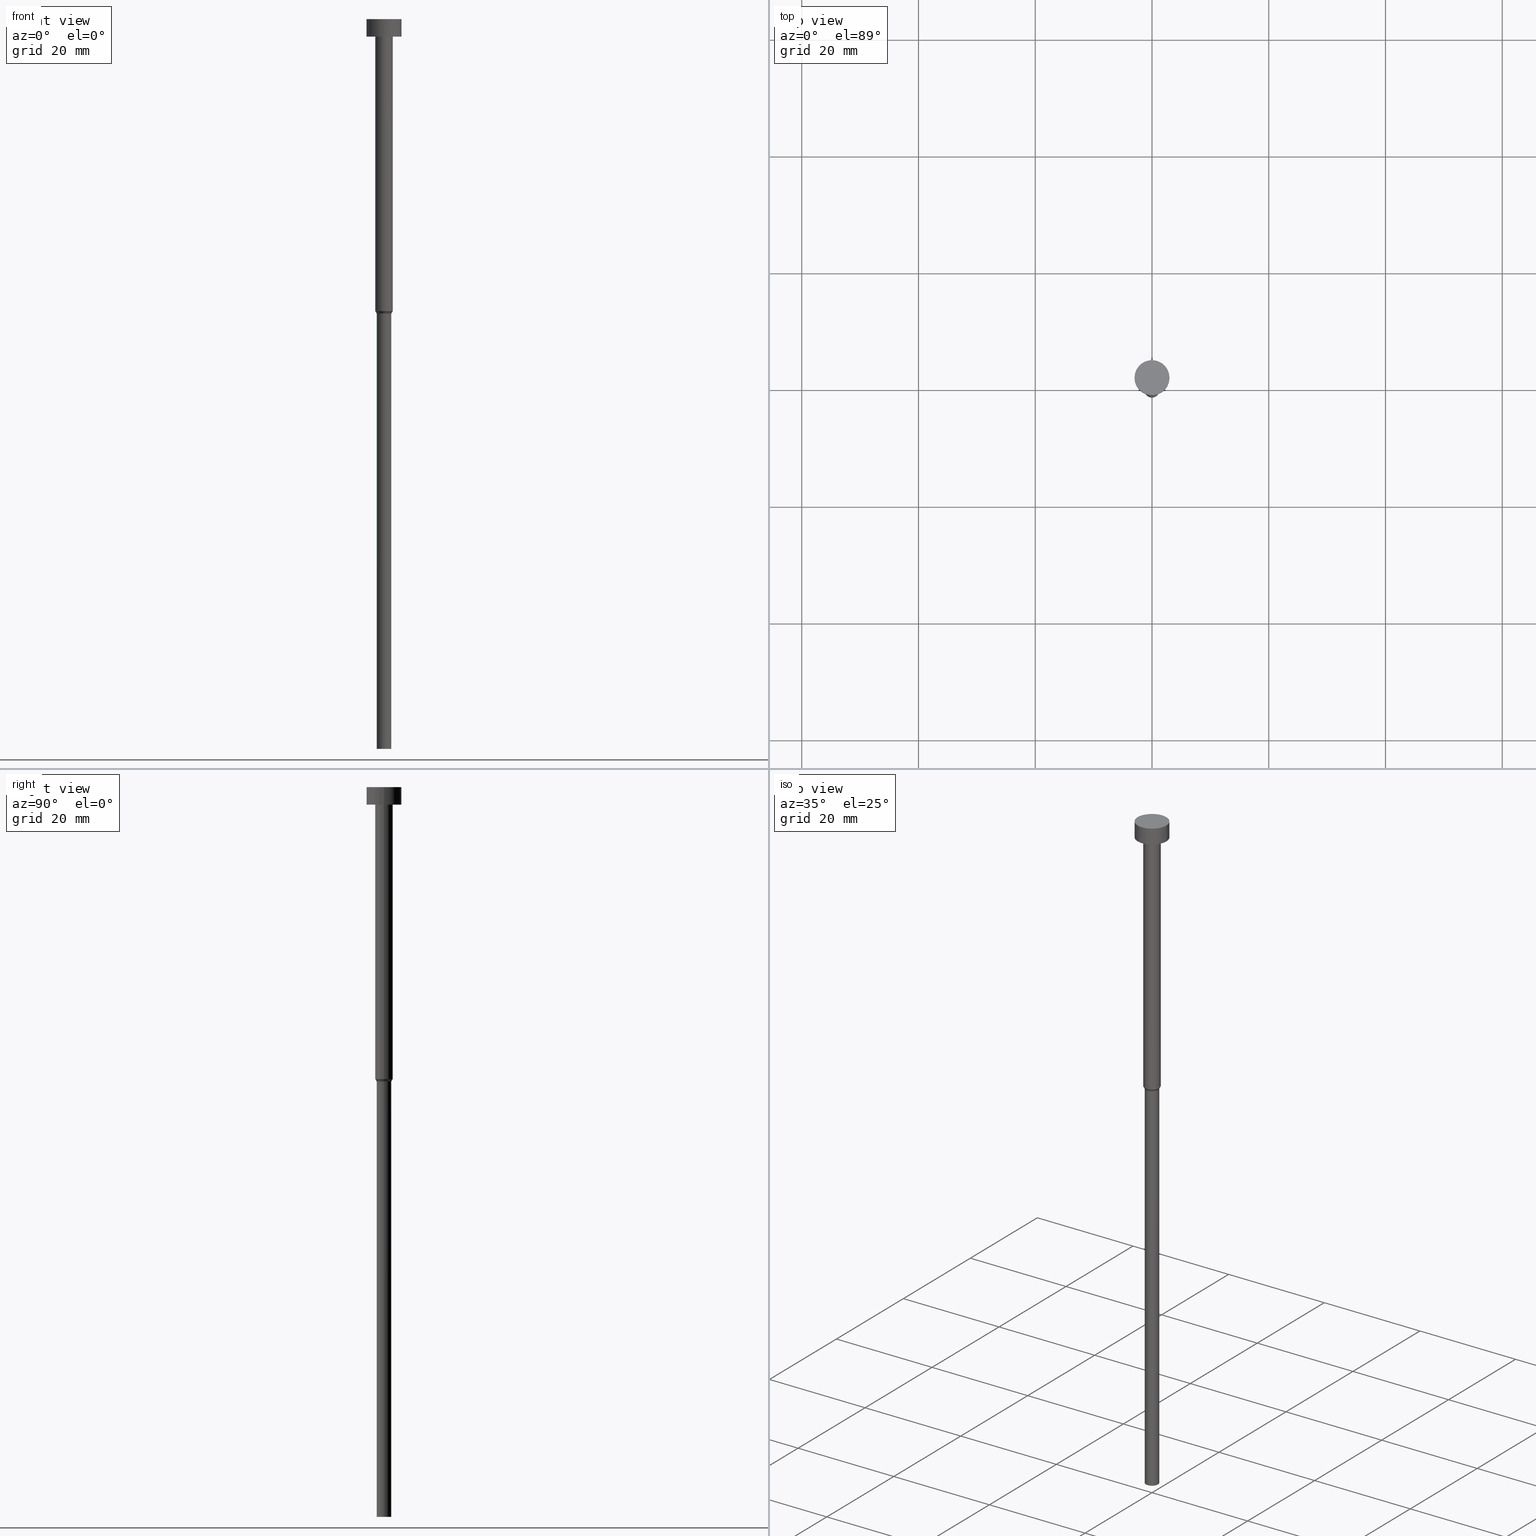
[diagram: canonical four-view strip — front | top / right | iso, engineering-drawing reading convention]
A machine part, canonical four-view strip (front | top / right | iso — engineering-drawing reading convention). The complete STEP part file that produces these views, byte-faithful:
ISO-10303-21;
HEADER;
FILE_DESCRIPTION (( 'STEP AP203' ),
    '1' );
FILE_NAME ('f55d.STEP',
    '2023-02-13T10:02:43',
    ( '' ),
    ( '' ),
    'SwSTEP 2.0',
    'SolidWorks 2019',
    '' );
FILE_SCHEMA (( 'CONFIG_CONTROL_DESIGN' ));
ENDSEC;

DATA;
#1 = AXIS2_PLACEMENT_3D ( 'NONE', #91, #47, #228 ) ;
#2 = EDGE_LOOP ( 'NONE', ( #8, #53, #223, #6 ) ) ;
#3 = ORGANIZATION ( 'NEUR�EN�', 'NEUR�EN�', '' ) ;
#4 = COORDINATED_UNIVERSAL_TIME_OFFSET ( 1, 0, .AHEAD. ) ;
#5 = EDGE_LOOP ( 'NONE', ( #222, #329, #217, #271 ) ) ;
#6 = ORIENTED_EDGE ( 'NONE', *, *, #202, .F. ) ;
#7 = ORIENTED_EDGE ( 'NONE', *, *, #51, .F. ) ;
#8 = ORIENTED_EDGE ( 'NONE', *, *, #321, .F. ) ;
#9 = VERTEX_POINT ( 'NONE', #137 ) ;
#10 = LINE ( 'NONE', #73, #133 ) ;
#11 = DIRECTION ( 'NONE',  ( -0.000000000000000000, -0.000000000000000000, 1.000000000000000000 ) ) ;
#12 = PRODUCT_RELATED_PRODUCT_CATEGORY ( 'detail', '', ( #117 ) ) ;
#13 = PRODUCT_DEFINITION_SHAPE ( 'NONE', 'NONE',  #188 ) ;
#14 = DIRECTION ( 'NONE',  ( 1.000000000000000000, 0.000000000000000000, 0.000000000000000000 ) ) ;
#15 = FACE_OUTER_BOUND ( 'NONE', #186, .T. ) ;
#16 = CIRCLE ( 'NONE', #101, 1.500000000000000000 ) ;
#17 = VECTOR ( 'NONE', #215, 1000.000000000000000 ) ;
#18 = CARTESIAN_POINT ( 'NONE',  ( 0.000000000000000000, 0.000000000000000000, -125.0000000000000000 ) ) ;
#19 = CC_DESIGN_PERSON_AND_ORGANIZATION_ASSIGNMENT ( #220, #299, ( #188 ) ) ;
#20 = DIRECTION ( 'NONE',  ( 1.000000000000000000, 0.000000000000000000, 0.000000000000000000 ) ) ;
#21 = EDGE_CURVE ( 'NONE', #22, #353, #219, .T. ) ;
#22 = VERTEX_POINT ( 'NONE', #197 ) ;
#23 =( GEOMETRIC_REPRESENTATION_CONTEXT ( 3 ) GLOBAL_UNCERTAINTY_ASSIGNED_CONTEXT ( ( #161 ) ) GLOBAL_UNIT_ASSIGNED_CONTEXT ( ( #147, #198, #140 ) ) REPRESENTATION_CONTEXT ( 'NONE', 'WORKASPACE' ) );
#24 = ORIENTED_EDGE ( 'NONE', *, *, #312, .F. ) ;
#25 = COORDINATED_UNIVERSAL_TIME_OFFSET ( 1, 0, .AHEAD. ) ;
#26 = APPROVAL_PERSON_ORGANIZATION ( #318, #250, #268 ) ;
#27 = CONICAL_SURFACE ( 'NONE', #211, 1.500000000000000000, 0.5235987755982968173 ) ;
#28 = ADVANCED_FACE ( 'NONE', ( #327 ), #27, .T. ) ;
#29 = EDGE_LOOP ( 'NONE', ( #193, #132 ) ) ;
#30 = VERTEX_POINT ( 'NONE', #59 ) ;
#31 = VERTEX_POINT ( 'NONE', #249 ) ;
#32 = APPROVAL_ROLE ( '' ) ;
#33 = APPROVAL_ROLE ( '' ) ;
#34 = DIRECTION ( 'NONE',  ( 1.000000000000000000, 0.000000000000000000, 0.000000000000000000 ) ) ;
#35 = CIRCLE ( 'NONE', #225, 1.250000000000000000 ) ;
#36 = LOCAL_TIME ( 11, 2, 43.00000000000000000, #106 ) ;
#37 = ADVANCED_FACE ( 'NONE', ( #289 ), #285, .T. ) ;
#38 = DIRECTION ( 'NONE',  ( -1.000000000000000000, 0.000000000000000000, -0.000000000000000000 ) ) ;
#39 = CARTESIAN_POINT ( 'NONE',  ( 0.000000000000000000, 0.000000000000000000, 0.000000000000000000 ) ) ;
#40 = CC_DESIGN_PERSON_AND_ORGANIZATION_ASSIGNMENT ( #280, #68, ( #120 ) ) ;
#41 = DIRECTION ( 'NONE',  ( 1.000000000000000000, 0.000000000000000000, 0.000000000000000000 ) ) ;
#42 = FACE_OUTER_BOUND ( 'NONE', #5, .T. ) ;
#43 = DIRECTION ( 'NONE',  ( 1.000000000000000000, 0.000000000000000000, 0.000000000000000000 ) ) ;
#44 = EDGE_CURVE ( 'NONE', #273, #9, #93, .T. ) ;
#45 = DIRECTION ( 'NONE',  ( -0.000000000000000000, -0.000000000000000000, 1.000000000000000000 ) ) ;
#46 = CARTESIAN_POINT ( 'NONE',  ( 0.000000000000000000, 0.000000000000000000, -3.000000000000000888 ) ) ;
#47 = DIRECTION ( 'NONE',  ( -0.000000000000000000, -0.000000000000000000, 1.000000000000000000 ) ) ;
#48 = PERSON_AND_ORGANIZATION ( #63, #3 ) ;
#49 = DIRECTION ( 'NONE',  ( -0.000000000000000000, -0.000000000000000000, 1.000000000000000000 ) ) ;
#50 = AXIS2_PLACEMENT_3D ( 'NONE', #262, #253, #344 ) ;
#51 = EDGE_CURVE ( 'NONE', #9, #157, #227, .T. ) ;
#52 = DIRECTION ( 'NONE',  ( 0.000000000000000000, 0.000000000000000000, -1.000000000000000000 ) ) ;
#53 = ORIENTED_EDGE ( 'NONE', *, *, #196, .T. ) ;
#54 = CARTESIAN_POINT ( 'NONE',  ( -1.500000000000000000, 1.836970198721029934E-16, -3.000000000000000888 ) ) ;
#55 = ORIENTED_EDGE ( 'NONE', *, *, #44, .F. ) ;
#56 = AXIS2_PLACEMENT_3D ( 'NONE', #149, #75, #317 ) ;
#57 = DIRECTION ( 'NONE',  ( 1.000000000000000000, 0.000000000000000000, 0.000000000000000000 ) ) ;
#58 = EDGE_LOOP ( 'NONE', ( #66, #243, #191, #166 ) ) ;
#59 = CARTESIAN_POINT ( 'NONE',  ( 1.250000000000000000, 0.000000000000000000, -125.0000000000000000 ) ) ;
#60 = ORIENTED_EDGE ( 'NONE', *, *, #44, .T. ) ;
#61 = ADVANCED_FACE ( 'NONE', ( #15 ), #96, .T. ) ;
#62 = PERSON_AND_ORGANIZATION ( #63, #3 ) ;
#63 = PERSON ( 'NEUR�EN�', 'NEUR�EN�', 'NEUR�EN�', ('NEUR�EN�'), ('NEUR�EN�'), ('NEUR�EN�') ) ;
#64 = ADVANCED_FACE ( 'NONE', ( #341 ), #345, .T. ) ;
#65 = ADVANCED_FACE ( 'NONE', ( #310 ), #100, .T. ) ;
#66 = ORIENTED_EDGE ( 'NONE', *, *, #324, .F. ) ;
#67 = CIRCLE ( 'NONE', #50, 1.250000000000000000 ) ;
#68 = PERSON_AND_ORGANIZATION_ROLE ( 'design_supplier' ) ;
#69 = CARTESIAN_POINT ( 'NONE',  ( 0.000000000000000000, 0.000000000000000000, -3.000000000000000888 ) ) ;
#70 = CARTESIAN_POINT ( 'NONE',  ( 0.000000000000000000, 0.000000000000000000, -1.836970198721029934E-16 ) ) ;
#71 = DIRECTION ( 'NONE',  ( -0.000000000000000000, -0.000000000000000000, 1.000000000000000000 ) ) ;
#72 = VECTOR ( 'NONE', #340, 1000.000000000000000 ) ;
#73 = CARTESIAN_POINT ( 'NONE',  ( -1.500000000000000000, 1.836970198721029934E-16, 0.000000000000000000 ) ) ;
#74 = DIRECTION ( 'NONE',  ( -0.000000000000000000, -0.000000000000000000, 1.000000000000000000 ) ) ;
#75 = DIRECTION ( 'NONE',  ( -0.000000000000000000, -0.000000000000000000, 1.000000000000000000 ) ) ;
#76 = LOCAL_TIME ( 11, 2, 43.00000000000000000, #4 ) ;
#77 = EDGE_CURVE ( 'NONE', #273, #31, #231, .T. ) ;
#78 = PLANE ( 'NONE',  #124 ) ;
#79 = APPROVAL ( #276, 'NEUR�EN�' ) ;
#80 = CIRCLE ( 'NONE', #343, 1.250000000000000000 ) ;
#81 = ORIENTED_EDGE ( 'NONE', *, *, #196, .F. ) ;
#82 = VERTEX_POINT ( 'NONE', #139 ) ;
#83 = FACE_BOUND ( 'NONE', #29, .T. ) ;
#84 = CALENDAR_DATE ( 2023, 13, 2 ) ;
#85 = CARTESIAN_POINT ( 'NONE',  ( 0.000000000000000000, 0.000000000000000000, -3.000000000000000888 ) ) ;
#86 = EDGE_CURVE ( 'NONE', #157, #31, #251, .T. ) ;
#87 = AXIS2_PLACEMENT_3D ( 'NONE', #39, #142, #256 ) ;
#88 = ORIENTED_EDGE ( 'NONE', *, *, #77, .F. ) ;
#89 = CC_DESIGN_DATE_AND_TIME_ASSIGNMENT ( #128, #348, ( #112 ) ) ;
#90 = DIRECTION ( 'NONE',  ( 0.4999999999999981681, 0.000000000000000000, 0.8660254037844395958 ) ) ;
#91 = CARTESIAN_POINT ( 'NONE',  ( 0.000000000000000000, 0.000000000000000000, -50.00000000000000000 ) ) ;
#92 = VECTOR ( 'NONE', #168, 1000.000000000000114 ) ;
#93 = CIRCLE ( 'NONE', #339, 3.000000000000000000 ) ;
#94 = FACE_OUTER_BOUND ( 'NONE', #300, .T. ) ;
#95 = CARTESIAN_POINT ( 'NONE',  ( 3.000000000000000000, 0.000000000000000000, 0.000000000000000000 ) ) ;
#96 = CYLINDRICAL_SURFACE ( 'NONE', #192, 3.000000000000000000 ) ;
#97 = FACE_OUTER_BOUND ( 'NONE', #294, .T. ) ;
#98 = EDGE_CURVE ( 'NONE', #252, #30, #67, .T. ) ;
#99 = CARTESIAN_POINT ( 'NONE',  ( 0.000000000000000000, 0.000000000000000000, -50.00000000000000000 ) ) ;
#100 = PLANE ( 'NONE',  #172 ) ;
#101 = AXIS2_PLACEMENT_3D ( 'NONE', #99, #74, #207 ) ;
#102 = LINE ( 'NONE', #291, #266 ) ;
#103 = CC_DESIGN_DATE_AND_TIME_ASSIGNMENT ( #282, #301, ( #188 ) ) ;
#104 = APPROVAL_STATUS ( 'not_yet_approved' ) ;
#105 = ORIENTED_EDGE ( 'NONE', *, *, #288, .F. ) ;
#106 = COORDINATED_UNIVERSAL_TIME_OFFSET ( 1, 0, .AHEAD. ) ;
#107 = APPROVAL_DATE_TIME ( #136, #250 ) ;
#108 = EDGE_CURVE ( 'NONE', #30, #22, #114, .T. ) ;
#109 = PERSON_AND_ORGANIZATION ( #63, #3 ) ;
#110 = CALENDAR_DATE ( 2023, 13, 2 ) ;
#111 = EDGE_LOOP ( 'NONE', ( #246, #164 ) ) ;
#112 = SECURITY_CLASSIFICATION ( '', '', #235 ) ;
#113 = ORIENTED_EDGE ( 'NONE', *, *, #86, .F. ) ;
#114 = LINE ( 'NONE', #201, #72 ) ;
#115 = APPLICATION_CONTEXT ( 'configuration controlled 3d designs of mechanical parts and assemblies' ) ;
#116 = CARTESIAN_POINT ( 'NONE',  ( 0.000000000000000000, 0.000000000000000000, -50.43301270189222407 ) ) ;
#117 = PRODUCT ( 'f55d', 'f55d', '', ( #261 ) ) ;
#118 = CARTESIAN_POINT ( 'NONE',  ( 1.500000000000000000, 0.000000000000000000, -3.000000000000000888 ) ) ;
#119 = CARTESIAN_POINT ( 'NONE',  ( -1.250000000000000000, 1.530808498934191571E-16, -50.43301270189222407 ) ) ;
#120 = PRODUCT_DEFINITION_FORMATION_WITH_SPECIFIED_SOURCE ( 'LIBOVOLN�', '', #117, .NOT_KNOWN. ) ;
#121 = AXIS2_PLACEMENT_3D ( 'NONE', #204, #11, #286 ) ;
#122 = DIRECTION ( 'NONE',  ( -0.000000000000000000, -0.000000000000000000, 1.000000000000000000 ) ) ;
#123 = APPLICATION_PROTOCOL_DEFINITION ( 'international standard', 'config_control_design', 1994, #326 ) ;
#124 = AXIS2_PLACEMENT_3D ( 'NONE', #213, #52, #151 ) ;
#125 = CARTESIAN_POINT ( 'NONE',  ( 1.500000000000000000, 0.000000000000000000, 0.000000000000000000 ) ) ;
#126 = LOCAL_TIME ( 11, 2, 43.00000000000000000, #325 ) ;
#127 = DIRECTION ( 'NONE',  ( 1.000000000000000000, 0.000000000000000000, 0.000000000000000000 ) ) ;
#128 = DATE_AND_TIME ( #110, #76 ) ;
#129 = EDGE_LOOP ( 'NONE', ( #105, #237, #305, #81 ) ) ;
#130 = CYLINDRICAL_SURFACE ( 'NONE', #216, 3.000000000000000000 ) ;
#131 = ADVANCED_FACE ( 'NONE', ( #94 ), #309, .T. ) ;
#132 = ORIENTED_EDGE ( 'NONE', *, *, #226, .T. ) ;
#133 = VECTOR ( 'NONE', #145, 1000.000000000000000 ) ;
#134 = SHAPE_DEFINITION_REPRESENTATION ( #13, #349 ) ;
#135 = APPROVAL ( #218, 'NEUR�EN�' ) ;
#136 = DATE_AND_TIME ( #354, #205 ) ;
#137 = CARTESIAN_POINT ( 'NONE',  ( 3.000000000000000000, 0.000000000000000000, -3.000000000000000888 ) ) ;
#138 = DIRECTION ( 'NONE',  ( 1.000000000000000000, 0.000000000000000000, 0.000000000000000000 ) ) ;
#139 = CARTESIAN_POINT ( 'NONE',  ( -1.500000000000000000, 1.836970198721029934E-16, -50.00000000000000000 ) ) ;
#140 =( NAMED_UNIT ( * ) SI_UNIT ( $, .STERADIAN. ) SOLID_ANGLE_UNIT ( ) );
#141 = AXIS2_PLACEMENT_3D ( 'NONE', #146, #234, #20 ) ;
#142 = DIRECTION ( 'NONE',  ( -0.000000000000000000, -0.000000000000000000, 1.000000000000000000 ) ) ;
#143 = CARTESIAN_POINT ( 'NONE',  ( 0.000000000000000000, 0.000000000000000000, -3.000000000000000888 ) ) ;
#144 = CC_DESIGN_PERSON_AND_ORGANIZATION_ASSIGNMENT ( #62, #302, ( #120 ) ) ;
#145 = DIRECTION ( 'NONE',  ( -0.000000000000000000, -0.000000000000000000, 1.000000000000000000 ) ) ;
#146 = CARTESIAN_POINT ( 'NONE',  ( 0.000000000000000000, 0.000000000000000000, -3.673940397442059868E-16 ) ) ;
#147 =( LENGTH_UNIT ( ) NAMED_UNIT ( * ) SI_UNIT ( .MILLI., .METRE. ) );
#148 = AXIS2_PLACEMENT_3D ( 'NONE', #254, #71, #138 ) ;
#149 = CARTESIAN_POINT ( 'NONE',  ( 0.000000000000000000, 0.000000000000000000, -50.00000000000000000 ) ) ;
#150 = CLOSED_SHELL ( 'NONE', ( #61, #334, #28, #187, #65, #37, #64, #308, #247, #272, #131 ) ) ;
#151 = DIRECTION ( 'NONE',  ( -1.000000000000000000, 0.000000000000000000, -0.000000000000000000 ) ) ;
#152 = EDGE_CURVE ( 'NONE', #180, #292, #242, .T. ) ;
#153 = ORIENTED_EDGE ( 'NONE', *, *, #155, .T. ) ;
#154 = EDGE_LOOP ( 'NONE', ( #322, #185, #24, #179 ) ) ;
#155 = EDGE_CURVE ( 'NONE', #9, #273, #304, .T. ) ;
#156 = EDGE_LOOP ( 'NONE', ( #88, #60, #323, #162 ) ) ;
#157 = VERTEX_POINT ( 'NONE', #167 ) ;
#158 = DIRECTION ( 'NONE',  ( -0.000000000000000000, -0.000000000000000000, 1.000000000000000000 ) ) ;
#159 = ORIENTED_EDGE ( 'NONE', *, *, #288, .T. ) ;
#160 = DIRECTION ( 'NONE',  ( -0.000000000000000000, -0.000000000000000000, 1.000000000000000000 ) ) ;
#161 = UNCERTAINTY_MEASURE_WITH_UNIT (LENGTH_MEASURE( 1.000000000000000082E-05 ), #147, 'distance_accuracy_value', 'NONE');
#162 = ORIENTED_EDGE ( 'NONE', *, *, #241, .F. ) ;
#163 = DATE_AND_TIME ( #84, #126 ) ;
#164 = ORIENTED_EDGE ( 'NONE', *, *, #98, .F. ) ;
#165 = CIRCLE ( 'NONE', #278, 1.500000000000000000 ) ;
#166 = ORIENTED_EDGE ( 'NONE', *, *, #226, .F. ) ;
#167 = CARTESIAN_POINT ( 'NONE',  ( 3.000000000000000000, 0.000000000000000000, -3.673940397442059868E-16 ) ) ;
#168 = DIRECTION ( 'NONE',  ( -0.4999999999999981681, 6.123233995736742617E-17, 0.8660254037844395958 ) ) ;
#169 = DIRECTION ( 'NONE',  ( 1.000000000000000000, 0.000000000000000000, 0.000000000000000000 ) ) ;
#170 = CC_DESIGN_APPROVAL ( #79, ( #120 ) ) ;
#171 = CYLINDRICAL_SURFACE ( 'NONE', #335, 1.500000000000000000 ) ;
#172 = AXIS2_PLACEMENT_3D ( 'NONE', #18, #178, #38 ) ;
#173 = DIRECTION ( 'NONE',  ( -0.000000000000000000, -0.000000000000000000, 1.000000000000000000 ) ) ;
#174 = FACE_OUTER_BOUND ( 'NONE', #199, .T. ) ;
#175 = DIRECTION ( 'NONE',  ( 1.000000000000000000, 0.000000000000000000, 0.000000000000000000 ) ) ;
#176 = DIRECTION ( 'NONE',  ( 1.000000000000000000, 0.000000000000000000, 0.000000000000000000 ) ) ;
#177 = CIRCLE ( 'NONE', #279, 1.250000000000000000 ) ;
#178 = DIRECTION ( 'NONE',  ( 0.000000000000000000, 0.000000000000000000, -1.000000000000000000 ) ) ;
#179 = ORIENTED_EDGE ( 'NONE', *, *, #21, .F. ) ;
#180 = VERTEX_POINT ( 'NONE', #118 ) ;
#181 = CARTESIAN_POINT ( 'NONE',  ( 0.000000000000000000, 0.000000000000000000, -50.43301270189222407 ) ) ;
#182 = ORIENTED_EDGE ( 'NONE', *, *, #77, .T. ) ;
#183 = CALENDAR_DATE ( 2023, 13, 2 ) ;
#184 = CARTESIAN_POINT ( 'NONE',  ( 0.000000000000000000, 0.000000000000000000, 0.000000000000000000 ) ) ;
#185 = ORIENTED_EDGE ( 'NONE', *, *, #321, .T. ) ;
#186 = EDGE_LOOP ( 'NONE', ( #153, #182, #113, #7 ) ) ;
#187 = ADVANCED_FACE ( 'NONE', ( #174 ), #230, .T. ) ;
#188 = PRODUCT_DEFINITION ( 'NEZN�M�', '', #120, #238 ) ;
#189 = CARTESIAN_POINT ( 'NONE',  ( 0.000000000000000000, 0.000000000000000000, -50.00000000000000000 ) ) ;
#190 = CIRCLE ( 'NONE', #1, 1.500000000000000000 ) ;
#191 = ORIENTED_EDGE ( 'NONE', *, *, #303, .T. ) ;
#192 = AXIS2_PLACEMENT_3D ( 'NONE', #233, #173, #169 ) ;
#193 = ORIENTED_EDGE ( 'NONE', *, *, #152, .T. ) ;
#194 = ORIENTED_EDGE ( 'NONE', *, *, #108, .F. ) ;
#195 = DATE_AND_TIME ( #337, #306 ) ;
#196 = EDGE_CURVE ( 'NONE', #355, #22, #80, .T. ) ;
#197 = CARTESIAN_POINT ( 'NONE',  ( 1.250000000000000000, 0.000000000000000000, -50.43301270189222407 ) ) ;
#198 =( NAMED_UNIT ( * ) PLANE_ANGLE_UNIT ( ) SI_UNIT ( $, .RADIAN. ) );
#199 = EDGE_LOOP ( 'NONE', ( #264, #159, #214, #194 ) ) ;
#200 = DIRECTION ( 'NONE',  ( 1.000000000000000000, 0.000000000000000000, 0.000000000000000000 ) ) ;
#201 = CARTESIAN_POINT ( 'NONE',  ( 1.250000000000000000, 0.000000000000000000, 0.000000000000000000 ) ) ;
#202 = EDGE_CURVE ( 'NONE', #82, #353, #16, .T. ) ;
#203 = DIRECTION ( 'NONE',  ( -0.000000000000000000, -0.000000000000000000, 1.000000000000000000 ) ) ;
#204 = CARTESIAN_POINT ( 'NONE',  ( 0.000000000000000000, 0.000000000000000000, -3.673940397442059868E-16 ) ) ;
#205 = LOCAL_TIME ( 11, 2, 43.00000000000000000, #25 ) ;
#206 = CARTESIAN_POINT ( 'NONE',  ( -3.000000000000000000, 3.673940397442059868E-16, -3.000000000000000888 ) ) ;
#207 = DIRECTION ( 'NONE',  ( 1.000000000000000000, 0.000000000000000000, 0.000000000000000000 ) ) ;
#208 = CARTESIAN_POINT ( 'NONE',  ( -3.000000000000000000, 3.673940397442059868E-16, 0.000000000000000000 ) ) ;
#209 = CC_DESIGN_PERSON_AND_ORGANIZATION_ASSIGNMENT ( #352, #212, ( #112 ) ) ;
#210 = DIRECTION ( 'NONE',  ( -0.000000000000000000, -0.000000000000000000, 1.000000000000000000 ) ) ;
#211 = AXIS2_PLACEMENT_3D ( 'NONE', #189, #277, #34 ) ;
#212 = PERSON_AND_ORGANIZATION_ROLE ( 'classification_officer' ) ;
#213 = CARTESIAN_POINT ( 'NONE',  ( 0.000000000000000000, -3.000000000000000000, -3.000000000000000888 ) ) ;
#214 = ORIENTED_EDGE ( 'NONE', *, *, #265, .F. ) ;
#215 = DIRECTION ( 'NONE',  ( -0.000000000000000000, -0.000000000000000000, 1.000000000000000000 ) ) ;
#216 = AXIS2_PLACEMENT_3D ( 'NONE', #184, #160, #175 ) ;
#217 = ORIENTED_EDGE ( 'NONE', *, *, #152, .F. ) ;
#218 = APPROVAL_STATUS ( 'not_yet_approved' ) ;
#219 = LINE ( 'NONE', #332, #319 ) ;
#220 = PERSON_AND_ORGANIZATION ( #63, #3 ) ;
#221 = APPROVAL_DATE_TIME ( #195, #79 ) ;
#222 = ORIENTED_EDGE ( 'NONE', *, *, #312, .T. ) ;
#223 = ORIENTED_EDGE ( 'NONE', *, *, #21, .T. ) ;
#224 = LINE ( 'NONE', #232, #92 ) ;
#225 = AXIS2_PLACEMENT_3D ( 'NONE', #181, #158, #57 ) ;
#226 = EDGE_CURVE ( 'NONE', #292, #180, #165, .T. ) ;
#227 = LINE ( 'NONE', #95, #298 ) ;
#228 = DIRECTION ( 'NONE',  ( 1.000000000000000000, 0.000000000000000000, 0.000000000000000000 ) ) ;
#229 = CARTESIAN_POINT ( 'NONE',  ( 0.000000000000000000, 0.000000000000000000, 0.000000000000000000 ) ) ;
#230 = CYLINDRICAL_SURFACE ( 'NONE', #87, 1.250000000000000000 ) ;
#231 = LINE ( 'NONE', #208, #269 ) ;
#232 = CARTESIAN_POINT ( 'NONE',  ( -1.500000000000000000, 1.836970198721029934E-16, -50.00000000000000000 ) ) ;
#233 = CARTESIAN_POINT ( 'NONE',  ( 0.000000000000000000, 0.000000000000000000, 0.000000000000000000 ) ) ;
#234 = DIRECTION ( 'NONE',  ( -0.000000000000000000, -0.000000000000000000, 1.000000000000000000 ) ) ;
#235 = SECURITY_CLASSIFICATION_LEVEL ( 'unclassified' ) ;
#236 = CARTESIAN_POINT ( 'NONE',  ( -1.250000000000000000, 1.530808498934191571E-16, -125.0000000000000000 ) ) ;
#237 = ORIENTED_EDGE ( 'NONE', *, *, #98, .T. ) ;
#238 = DESIGN_CONTEXT ( 'detailed design', #115, 'design' ) ;
#239 = CARTESIAN_POINT ( 'NONE',  ( 0.000000000000000000, 0.000000000000000000, 0.000000000000000000 ) ) ;
#240 = ORIENTED_EDGE ( 'NONE', *, *, #155, .F. ) ;
#241 = EDGE_CURVE ( 'NONE', #31, #157, #296, .T. ) ;
#242 = CIRCLE ( 'NONE', #311, 1.500000000000000000 ) ;
#243 = ORIENTED_EDGE ( 'NONE', *, *, #202, .T. ) ;
#244 = APPLICATION_PROTOCOL_DEFINITION ( 'international standard', 'config_control_design', 1994, #115 ) ;
#245 = AXIS2_PLACEMENT_3D ( 'NONE', #229, #203, #314 ) ;
#246 = ORIENTED_EDGE ( 'NONE', *, *, #338, .F. ) ;
#247 = ADVANCED_FACE ( 'NONE', ( #83, #97 ), #78, .T. ) ;
#248 = COORDINATED_UNIVERSAL_TIME_OFFSET ( 1, 0, .AHEAD. ) ;
#249 = CARTESIAN_POINT ( 'NONE',  ( -3.000000000000000000, 3.673940397442059868E-16, -3.673940397442059868E-16 ) ) ;
#250 = APPROVAL ( #104, 'NEUR�EN�' ) ;
#251 = CIRCLE ( 'NONE', #121, 3.000000000000000000 ) ;
#252 = VERTEX_POINT ( 'NONE', #236 ) ;
#253 = DIRECTION ( 'NONE',  ( -0.000000000000000000, -0.000000000000000000, 1.000000000000000000 ) ) ;
#254 = CARTESIAN_POINT ( 'NONE',  ( 0.000000000000000000, 0.000000000000000000, 0.000000000000000000 ) ) ;
#255 = AXIS2_PLACEMENT_3D ( 'NONE', #70, #284, #41 ) ;
#256 = DIRECTION ( 'NONE',  ( 1.000000000000000000, 0.000000000000000000, 0.000000000000000000 ) ) ;
#257 = CC_DESIGN_APPROVAL ( #250, ( #112 ) ) ;
#258 = DIRECTION ( 'NONE',  ( -0.000000000000000000, -0.000000000000000000, 1.000000000000000000 ) ) ;
#259 = DIRECTION ( 'NONE',  ( 1.000000000000000000, 0.000000000000000000, 0.000000000000000000 ) ) ;
#260 = DIRECTION ( 'NONE',  ( -0.000000000000000000, -0.000000000000000000, 1.000000000000000000 ) ) ;
#261 = MECHANICAL_CONTEXT ( 'NONE', #326, 'mechanical' ) ;
#262 = CARTESIAN_POINT ( 'NONE',  ( 0.000000000000000000, 0.000000000000000000, -125.0000000000000000 ) ) ;
#263 = AXIS2_PLACEMENT_3D ( 'NONE', #239, #267, #127 ) ;
#264 = ORIENTED_EDGE ( 'NONE', *, *, #338, .T. ) ;
#265 = EDGE_CURVE ( 'NONE', #22, #355, #35, .T. ) ;
#266 = VECTOR ( 'NONE', #210, 1000.000000000000000 ) ;
#267 = DIRECTION ( 'NONE',  ( 0.000000000000000000, 0.000000000000000000, 1.000000000000000000 ) ) ;
#268 = APPROVAL_ROLE ( '' ) ;
#269 = VECTOR ( 'NONE', #45, 1000.000000000000000 ) ;
#270 = CYLINDRICAL_SURFACE ( 'NONE', #148, 1.500000000000000000 ) ;
#271 = ORIENTED_EDGE ( 'NONE', *, *, #303, .F. ) ;
#272 = ADVANCED_FACE ( 'NONE', ( #350 ), #130, .T. ) ;
#273 = VERTEX_POINT ( 'NONE', #206 ) ;
#274 = PERSON_AND_ORGANIZATION_ROLE ( 'design_owner' ) ;
#275 = APPROVAL_DATE_TIME ( #163, #135 ) ;
#276 = APPROVAL_STATUS ( 'not_yet_approved' ) ;
#277 = DIRECTION ( 'NONE',  ( -0.000000000000000000, -0.000000000000000000, 1.000000000000000000 ) ) ;
#278 = AXIS2_PLACEMENT_3D ( 'NONE', #46, #342, #347 ) ;
#279 = AXIS2_PLACEMENT_3D ( 'NONE', #287, #281, #43 ) ;
#280 = PERSON_AND_ORGANIZATION ( #63, #3 ) ;
#281 = DIRECTION ( 'NONE',  ( -0.000000000000000000, -0.000000000000000000, 1.000000000000000000 ) ) ;
#282 = DATE_AND_TIME ( #183, #36 ) ;
#283 = DIRECTION ( 'NONE',  ( 1.000000000000000000, 0.000000000000000000, 0.000000000000000000 ) ) ;
#284 = DIRECTION ( 'NONE',  ( 0.000000000000000000, -0.000000000000000000, 1.000000000000000000 ) ) ;
#285 = CYLINDRICAL_SURFACE ( 'NONE', #245, 1.250000000000000000 ) ;
#286 = DIRECTION ( 'NONE',  ( 1.000000000000000000, 0.000000000000000000, 0.000000000000000000 ) ) ;
#287 = CARTESIAN_POINT ( 'NONE',  ( 0.000000000000000000, 0.000000000000000000, -125.0000000000000000 ) ) ;
#288 = EDGE_CURVE ( 'NONE', #252, #355, #102, .T. ) ;
#289 = FACE_OUTER_BOUND ( 'NONE', #129, .T. ) ;
#290 = CC_DESIGN_SECURITY_CLASSIFICATION ( #112, ( #120 ) ) ;
#291 = CARTESIAN_POINT ( 'NONE',  ( -1.250000000000000000, 1.530808498934191571E-16, 0.000000000000000000 ) ) ;
#292 = VERTEX_POINT ( 'NONE', #54 ) ;
#293 = FACE_OUTER_BOUND ( 'NONE', #58, .T. ) ;
#294 = EDGE_LOOP ( 'NONE', ( #240, #55 ) ) ;
#295 = ORIENTED_EDGE ( 'NONE', *, *, #86, .T. ) ;
#296 = CIRCLE ( 'NONE', #141, 3.000000000000000000 ) ;
#297 = ORIENTED_EDGE ( 'NONE', *, *, #241, .T. ) ;
#298 = VECTOR ( 'NONE', #49, 1000.000000000000000 ) ;
#299 = PERSON_AND_ORGANIZATION_ROLE ( 'creator' ) ;
#300 = EDGE_LOOP ( 'NONE', ( #295, #297 ) ) ;
#301 = DATE_TIME_ROLE ( 'creation_date' ) ;
#302 = PERSON_AND_ORGANIZATION_ROLE ( 'creator' ) ;
#303 = EDGE_CURVE ( 'NONE', #353, #180, #320, .T. ) ;
#304 = CIRCLE ( 'NONE', #328, 3.000000000000000000 ) ;
#305 = ORIENTED_EDGE ( 'NONE', *, *, #108, .T. ) ;
#306 = LOCAL_TIME ( 11, 2, 43.00000000000000000, #248 ) ;
#307 = CARTESIAN_POINT ( 'NONE',  ( 1.500000000000000000, 0.000000000000000000, -50.00000000000000000 ) ) ;
#308 = ADVANCED_FACE ( 'NONE', ( #293 ), #270, .T. ) ;
#309 = PLANE ( 'NONE',  #255 ) ;
#310 = FACE_OUTER_BOUND ( 'NONE', #111, .T. ) ;
#311 = AXIS2_PLACEMENT_3D ( 'NONE', #85, #260, #200 ) ;
#312 = EDGE_CURVE ( 'NONE', #353, #82, #190, .T. ) ;
#313 = CC_DESIGN_PERSON_AND_ORGANIZATION_ASSIGNMENT ( #48, #274, ( #117 ) ) ;
#314 = DIRECTION ( 'NONE',  ( 1.000000000000000000, 0.000000000000000000, 0.000000000000000000 ) ) ;
#315 = DIRECTION ( 'NONE',  ( -0.000000000000000000, -0.000000000000000000, 1.000000000000000000 ) ) ;
#316 = DIRECTION ( 'NONE',  ( -0.000000000000000000, -0.000000000000000000, 1.000000000000000000 ) ) ;
#317 = DIRECTION ( 'NONE',  ( 1.000000000000000000, 0.000000000000000000, 0.000000000000000000 ) ) ;
#318 = PERSON_AND_ORGANIZATION ( #63, #3 ) ;
#319 = VECTOR ( 'NONE', #90, 1000.000000000000114 ) ;
#320 = LINE ( 'NONE', #125, #17 ) ;
#321 = EDGE_CURVE ( 'NONE', #355, #82, #224, .T. ) ;
#322 = ORIENTED_EDGE ( 'NONE', *, *, #265, .T. ) ;
#323 = ORIENTED_EDGE ( 'NONE', *, *, #51, .T. ) ;
#324 = EDGE_CURVE ( 'NONE', #82, #292, #10, .T. ) ;
#325 = COORDINATED_UNIVERSAL_TIME_OFFSET ( 1, 0, .AHEAD. ) ;
#326 = APPLICATION_CONTEXT ( 'configuration controlled 3d designs of mechanical parts and assemblies' ) ;
#327 = FACE_OUTER_BOUND ( 'NONE', #154, .T. ) ;
#328 = AXIS2_PLACEMENT_3D ( 'NONE', #69, #315, #283 ) ;
#329 = ORIENTED_EDGE ( 'NONE', *, *, #324, .T. ) ;
#330 = CC_DESIGN_APPROVAL ( #135, ( #188 ) ) ;
#331 = APPROVAL_PERSON_ORGANIZATION ( #333, #79, #33 ) ;
#332 = CARTESIAN_POINT ( 'NONE',  ( 1.500000000000000000, 0.000000000000000000, -50.00000000000000000 ) ) ;
#333 = PERSON_AND_ORGANIZATION ( #63, #3 ) ;
#334 = ADVANCED_FACE ( 'NONE', ( #42 ), #171, .T. ) ;
#335 = AXIS2_PLACEMENT_3D ( 'NONE', #336, #258, #14 ) ;
#336 = CARTESIAN_POINT ( 'NONE',  ( 0.000000000000000000, 0.000000000000000000, 0.000000000000000000 ) ) ;
#337 = CALENDAR_DATE ( 2023, 13, 2 ) ;
#338 = EDGE_CURVE ( 'NONE', #30, #252, #177, .T. ) ;
#339 = AXIS2_PLACEMENT_3D ( 'NONE', #143, #122, #259 ) ;
#340 = DIRECTION ( 'NONE',  ( -0.000000000000000000, -0.000000000000000000, 1.000000000000000000 ) ) ;
#341 = FACE_OUTER_BOUND ( 'NONE', #2, .T. ) ;
#342 = DIRECTION ( 'NONE',  ( -0.000000000000000000, -0.000000000000000000, 1.000000000000000000 ) ) ;
#343 = AXIS2_PLACEMENT_3D ( 'NONE', #116, #316, #176 ) ;
#344 = DIRECTION ( 'NONE',  ( 1.000000000000000000, 0.000000000000000000, 0.000000000000000000 ) ) ;
#345 = CONICAL_SURFACE ( 'NONE', #56, 1.500000000000000000, 0.5235987755982968173 ) ;
#346 = MANIFOLD_SOLID_BREP ( 'Rotovat1', #150 ) ;
#347 = DIRECTION ( 'NONE',  ( 1.000000000000000000, 0.000000000000000000, 0.000000000000000000 ) ) ;
#348 = DATE_TIME_ROLE ( 'classification_date' ) ;
#349 = ADVANCED_BREP_SHAPE_REPRESENTATION ( 'f55d', ( #346, #263 ), #23 ) ;
#350 = FACE_OUTER_BOUND ( 'NONE', #156, .T. ) ;
#351 = APPROVAL_PERSON_ORGANIZATION ( #109, #135, #32 ) ;
#352 = PERSON_AND_ORGANIZATION ( #63, #3 ) ;
#353 = VERTEX_POINT ( 'NONE', #307 ) ;
#354 = CALENDAR_DATE ( 2023, 13, 2 ) ;
#355 = VERTEX_POINT ( 'NONE', #119 ) ;
ENDSEC;
END-ISO-10303-21;
